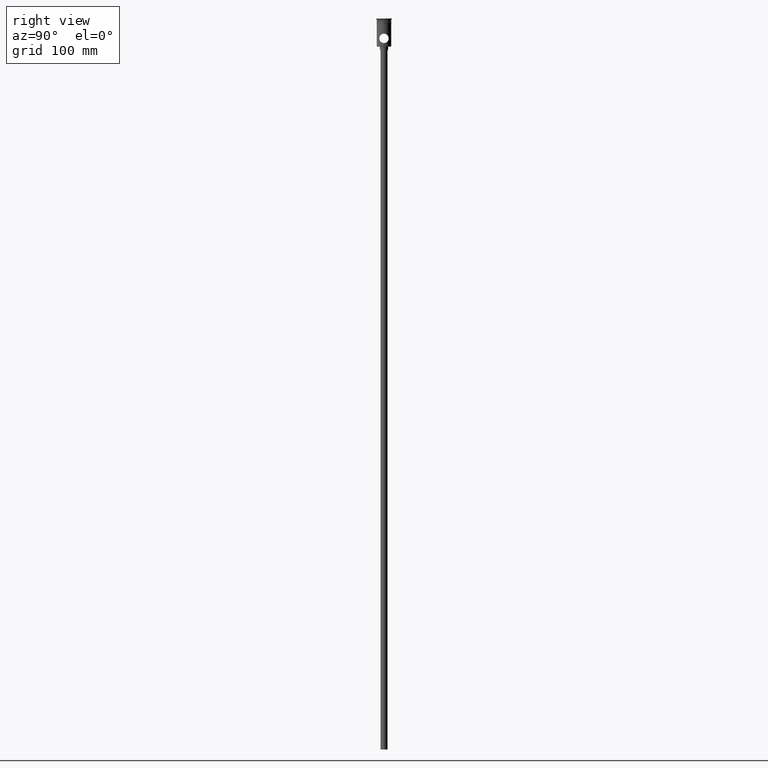
[diagram: clean part render]
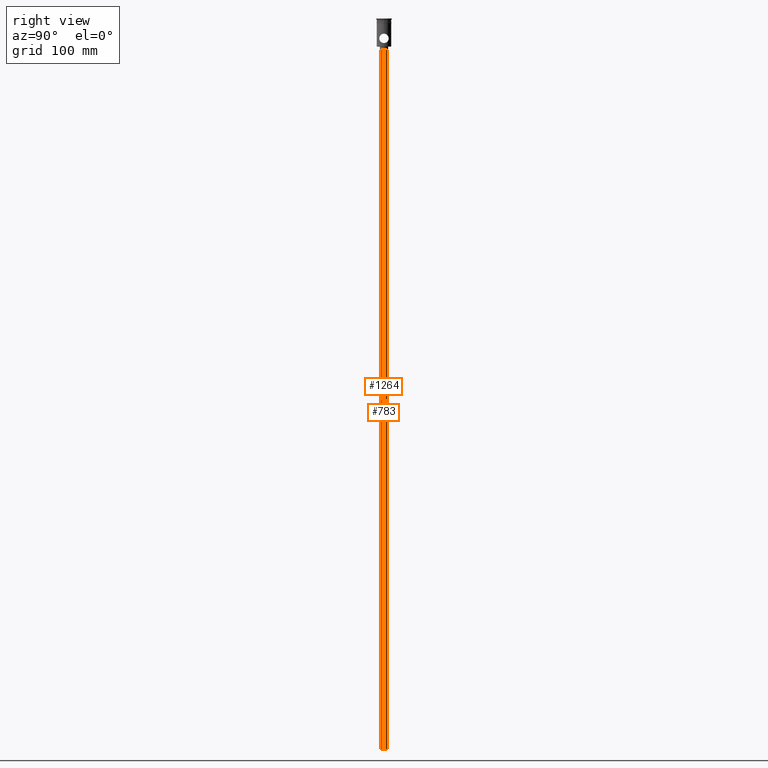
[diagram: same view with one multi-face feature highlighted, each face labeled with its STEP entity id]
A machine part, right view. The highlighted faces form ONE feature: a constant-radius fillet chain: 2 tangent blend faces with common blend radius 3 mm. The faces share edges in the B-rep.
Their STEP definitions:
[1] entity #1264 (Cylinder):
#27 = CARTESIAN_POINT ( 'NONE',  ( 0.000000000000000000, 0.000000000000000000, -27.00000000000000000 ) ) ;
#58 = CARTESIAN_POINT ( 'NONE',  ( 0.000000000000000000, 0.000000000000000000, -624.0000000000000000 ) ) ;
#90 = EDGE_LOOP ( 'NONE', ( #703, #589, #1348, #379 ) ) ;
#112 = DIRECTION ( 'NONE',  ( -0.000000000000000000, -0.000000000000000000, 1.000000000000000000 ) ) ;
#280 = DIRECTION ( 'NONE',  ( 1.000000000000000000, 0.000000000000000000, 0.000000000000000000 ) ) ;
#298 = VERTEX_POINT ( 'NONE', #1271 ) ;
#379 = ORIENTED_EDGE ( 'NONE', *, *, #1116, .T. ) ;
#392 = DIRECTION ( 'NONE',  ( -1.000000000000000000, 0.000000000000000000, 0.000000000000000000 ) ) ;
#403 = CARTESIAN_POINT ( 'NONE',  ( -3.000000000000000444, 3.673940397442060361E-16, -624.0000000000000000 ) ) ;
#428 = EDGE_CURVE ( 'NONE', #1357, #1041, #953, .T. ) ;
#443 = CARTESIAN_POINT ( 'NONE',  ( -3.000000000000000444, 3.673940397442060361E-16, -27.00000000000000000 ) ) ;
#449 = LINE ( 'NONE', #1338, #896 ) ;
#458 = DIRECTION ( 'NONE',  ( 0.000000000000000000, 0.000000000000000000, -1.000000000000000000 ) ) ;
#471 = AXIS2_PLACEMENT_3D ( 'NONE', #1044, #1189, #392 ) ;
#510 = EDGE_CURVE ( 'NONE', #298, #1007, #449, .T. ) ;
#589 = ORIENTED_EDGE ( 'NONE', *, *, #738, .F. ) ;
#620 = CYLINDRICAL_SURFACE ( 'NONE', #1082, 3.000000000000000444 ) ;
#703 = ORIENTED_EDGE ( 'NONE', *, *, #428, .F. ) ;
#738 = EDGE_CURVE ( 'NONE', #298, #1357, #870, .T. ) ;
#775 = DIRECTION ( 'NONE',  ( -1.000000000000000000, 0.000000000000000000, 0.000000000000000000 ) ) ;
#848 = DIRECTION ( 'NONE',  ( -0.000000000000000000, -0.000000000000000000, 1.000000000000000000 ) ) ;
#870 = CIRCLE ( 'NONE', #471, 3.000000000000000444 ) ;
#896 = VECTOR ( 'NONE', #112, 1000.000000000000000 ) ;
#953 = LINE ( 'NONE', #1286, #1315 ) ;
#1007 = VERTEX_POINT ( 'NONE', #1166 ) ;
#1041 = VERTEX_POINT ( 'NONE', #443 ) ;
#1044 = CARTESIAN_POINT ( 'NONE',  ( 0.000000000000000000, 0.000000000000000000, -624.0000000000000000 ) ) ;
#1082 = AXIS2_PLACEMENT_3D ( 'NONE', #58, #1297, #280 ) ;
#1116 = EDGE_CURVE ( 'NONE', #1007, #1041, #1393, .T. ) ;
#1166 = CARTESIAN_POINT ( 'NONE',  ( 3.000000000000000444, 0.000000000000000000, -27.00000000000000000 ) ) ;
#1189 = DIRECTION ( 'NONE',  ( 0.000000000000000000, 0.000000000000000000, -1.000000000000000000 ) ) ;
#1202 = AXIS2_PLACEMENT_3D ( 'NONE', #27, #458, #775 ) ;
#1264 = ADVANCED_FACE ( 'NONE', ( #1288 ), #620, .T. ) ;
#1271 = CARTESIAN_POINT ( 'NONE',  ( 3.000000000000000444, 0.000000000000000000, -624.0000000000000000 ) ) ;
#1286 = CARTESIAN_POINT ( 'NONE',  ( -3.000000000000000444, 3.673940397442060361E-16, -624.0000000000000000 ) ) ;
#1288 = FACE_OUTER_BOUND ( 'NONE', #90, .T. ) ;
#1297 = DIRECTION ( 'NONE',  ( -0.000000000000000000, -0.000000000000000000, 1.000000000000000000 ) ) ;
#1315 = VECTOR ( 'NONE', #848, 1000.000000000000000 ) ;
#1338 = CARTESIAN_POINT ( 'NONE',  ( 3.000000000000000444, 0.000000000000000000, -624.0000000000000000 ) ) ;
#1348 = ORIENTED_EDGE ( 'NONE', *, *, #510, .T. ) ;
#1357 = VERTEX_POINT ( 'NONE', #403 ) ;
#1393 = CIRCLE ( 'NONE', #1202, 3.000000000000000444 ) ;
[2] entity #783 (Cylinder):
#2 = EDGE_CURVE ( 'NONE', #1041, #1007, #469, .T. ) ;
#73 = EDGE_LOOP ( 'NONE', ( #1366, #137, #807, #1087 ) ) ;
#112 = DIRECTION ( 'NONE',  ( -0.000000000000000000, -0.000000000000000000, 1.000000000000000000 ) ) ;
#137 = ORIENTED_EDGE ( 'NONE', *, *, #428, .T. ) ;
#169 = DIRECTION ( 'NONE',  ( 0.000000000000000000, 0.000000000000000000, -1.000000000000000000 ) ) ;
#177 = AXIS2_PLACEMENT_3D ( 'NONE', #1282, #270, #180 ) ;
#180 = DIRECTION ( 'NONE',  ( 1.000000000000000000, 0.000000000000000000, 0.000000000000000000 ) ) ;
#270 = DIRECTION ( 'NONE',  ( -0.000000000000000000, -0.000000000000000000, 1.000000000000000000 ) ) ;
#298 = VERTEX_POINT ( 'NONE', #1271 ) ;
#389 = CARTESIAN_POINT ( 'NONE',  ( 0.000000000000000000, 0.000000000000000000, -624.0000000000000000 ) ) ;
#403 = CARTESIAN_POINT ( 'NONE',  ( -3.000000000000000444, 3.673940397442060361E-16, -624.0000000000000000 ) ) ;
#428 = EDGE_CURVE ( 'NONE', #1357, #1041, #953, .T. ) ;
#443 = CARTESIAN_POINT ( 'NONE',  ( -3.000000000000000444, 3.673940397442060361E-16, -27.00000000000000000 ) ) ;
#449 = LINE ( 'NONE', #1338, #896 ) ;
#469 = CIRCLE ( 'NONE', #918, 3.000000000000000444 ) ;
#509 = CARTESIAN_POINT ( 'NONE',  ( 0.000000000000000000, 0.000000000000000000, -27.00000000000000000 ) ) ;
#510 = EDGE_CURVE ( 'NONE', #298, #1007, #449, .T. ) ;
#516 = DIRECTION ( 'NONE',  ( 0.000000000000000000, 0.000000000000000000, -1.000000000000000000 ) ) ;
#740 = CYLINDRICAL_SURFACE ( 'NONE', #177, 3.000000000000000444 ) ;
#783 = ADVANCED_FACE ( 'NONE', ( #860 ), #740, .T. ) ;
#807 = ORIENTED_EDGE ( 'NONE', *, *, #2, .T. ) ;
#848 = DIRECTION ( 'NONE',  ( -0.000000000000000000, -0.000000000000000000, 1.000000000000000000 ) ) ;
#860 = FACE_OUTER_BOUND ( 'NONE', #73, .T. ) ;
#896 = VECTOR ( 'NONE', #112, 1000.000000000000000 ) ;
#918 = AXIS2_PLACEMENT_3D ( 'NONE', #509, #169, #963 ) ;
#953 = LINE ( 'NONE', #1286, #1315 ) ;
#963 = DIRECTION ( 'NONE',  ( -1.000000000000000000, 0.000000000000000000, 0.000000000000000000 ) ) ;
#1007 = VERTEX_POINT ( 'NONE', #1166 ) ;
#1041 = VERTEX_POINT ( 'NONE', #443 ) ;
#1087 = ORIENTED_EDGE ( 'NONE', *, *, #510, .F. ) ;
#1166 = CARTESIAN_POINT ( 'NONE',  ( 3.000000000000000444, 0.000000000000000000, -27.00000000000000000 ) ) ;
#1186 = DIRECTION ( 'NONE',  ( -1.000000000000000000, 0.000000000000000000, 0.000000000000000000 ) ) ;
#1237 = EDGE_CURVE ( 'NONE', #1357, #298, #1334, .T. ) ;
#1258 = AXIS2_PLACEMENT_3D ( 'NONE', #389, #516, #1186 ) ;
#1271 = CARTESIAN_POINT ( 'NONE',  ( 3.000000000000000444, 0.000000000000000000, -624.0000000000000000 ) ) ;
#1282 = CARTESIAN_POINT ( 'NONE',  ( 0.000000000000000000, 0.000000000000000000, -624.0000000000000000 ) ) ;
#1286 = CARTESIAN_POINT ( 'NONE',  ( -3.000000000000000444, 3.673940397442060361E-16, -624.0000000000000000 ) ) ;
#1315 = VECTOR ( 'NONE', #848, 1000.000000000000000 ) ;
#1334 = CIRCLE ( 'NONE', #1258, 3.000000000000000444 ) ;
#1338 = CARTESIAN_POINT ( 'NONE',  ( 3.000000000000000444, 0.000000000000000000, -624.0000000000000000 ) ) ;
#1357 = VERTEX_POINT ( 'NONE', #403 ) ;
#1366 = ORIENTED_EDGE ( 'NONE', *, *, #1237, .F. ) ;